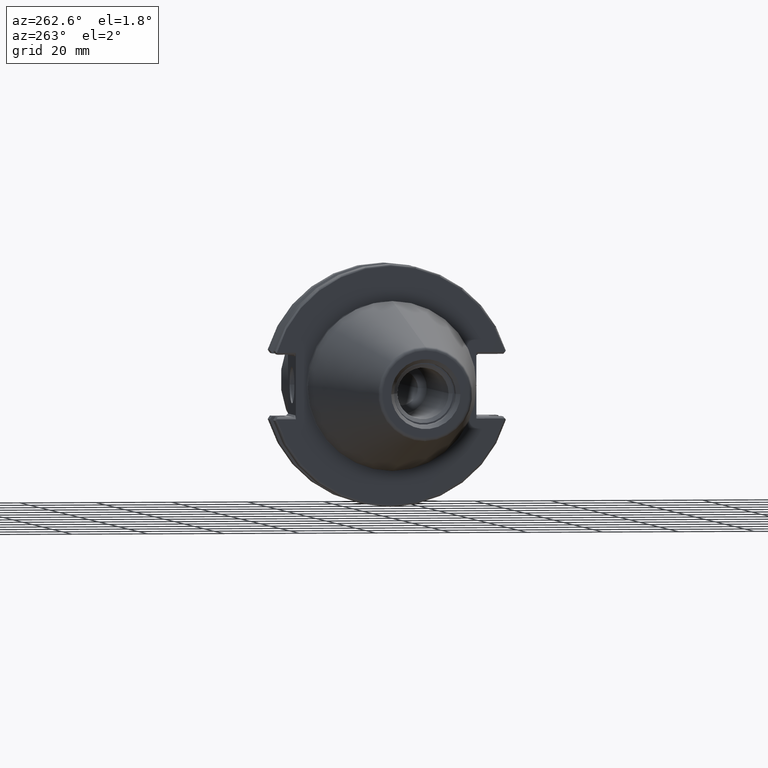
[diagram: clean part render]
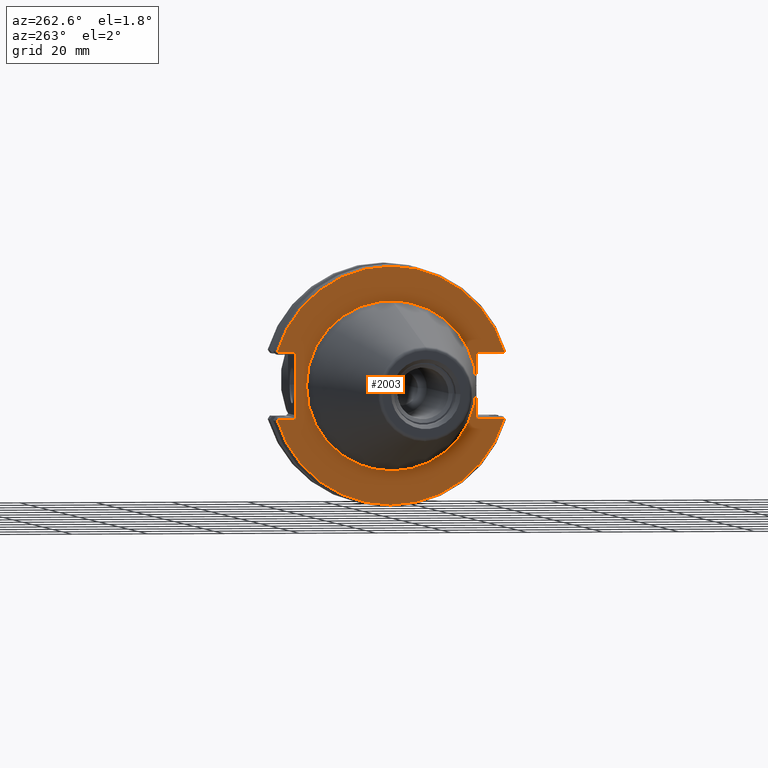
[diagram: same view with one face highlighted and labeled with its STEP entity id]
A machine part, auxiliary view. The second image highlights one B-rep face of the part: STEP entity #2003.
In plain terms, the highlighted planar face has unit normal (1, 0, 0).
Its self-contained STEP definition (entity closure, byte-faithful):
#116=CARTESIAN_POINT('',(3.175E0,0.E0,0.E0));
#117=DIRECTION('',(1.E0,0.E0,0.E0));
#118=DIRECTION('',(0.E0,1.E0,0.E0));
#119=AXIS2_PLACEMENT_3D('',#116,#117,#118);
#121=CARTESIAN_POINT('',(3.175E0,0.E0,0.E0));
#122=DIRECTION('',(1.E0,0.E0,0.E0));
#123=DIRECTION('',(0.E0,-1.E0,0.E0));
#124=AXIS2_PLACEMENT_3D('',#121,#122,#123);
#126=DIRECTION('',(-4.416490716681E-7,-9.999999999998E-1,-4.416327437506E-7));
#127=VECTOR('',#126,5.017433816154E0);
#128=CARTESIAN_POINT('',(3.175002215945E0,3.001743381615E1,8.690002215863E0));
#129=LINE('',#128,#127);
#130=DIRECTION('',(2.987481982108E-7,-9.999999999999E-1,2.987371537468E-7));
#131=VECTOR('',#130,7.417433816239E0);
#132=CARTESIAN_POINT('',(3.175E0,-2.26E1,8.69E0));
#133=LINE('',#132,#131);
#134=DIRECTION('',(-2.987481980911E-7,9.999999999999E-1,2.987371530284E-7));
#135=VECTOR('',#134,7.417433816238E0);
#136=CARTESIAN_POINT('',(3.175002215945E0,-3.001743381624E1,-8.690002215863E0));
#137=LINE('',#136,#135);
#138=DIRECTION('',(4.416490717585E-7,9.999999999998E-1,-4.416327437526E-7));
#139=VECTOR('',#138,5.017433816133E0);
#140=CARTESIAN_POINT('',(3.175E0,2.5E1,-8.69E0));
#141=LINE('',#140,#139);
#168=DIRECTION('',(0.E0,0.E0,-1.E0));
#169=VECTOR('',#168,1.738E1);
#170=CARTESIAN_POINT('',(3.175E0,2.5E1,8.69E0));
#171=LINE('',#170,#169);
#864=DIRECTION('',(0.E0,0.E0,1.E0));
#865=VECTOR('',#864,1.738E1);
#866=CARTESIAN_POINT('',(3.175E0,-2.26E1,-8.69E0));
#867=LINE('',#866,#865);
#990=CARTESIAN_POINT('',(3.175E0,0.E0,0.E0));
#991=DIRECTION('',(-1.E0,0.E0,0.E0));
#992=DIRECTION('',(0.E0,9.605579196518E-1,-2.780799938762E-1));
#993=AXIS2_PLACEMENT_3D('',#990,#991,#992);
#1062=CARTESIAN_POINT('',(3.175E0,0.E0,0.E0));
#1063=DIRECTION('',(-1.E0,0.E0,0.E0));
#1064=DIRECTION('',(0.E0,-9.605579196529E-1,2.780799938725E-1));
#1065=AXIS2_PLACEMENT_3D('',#1062,#1063,#1064);
#1544=CARTESIAN_POINT('',(3.175E0,2.22E1,0.E0));
#1545=CARTESIAN_POINT('',(3.175E0,-2.22E1,0.E0));
#1546=VERTEX_POINT('',#1544);
#1547=VERTEX_POINT('',#1545);
#1600=CARTESIAN_POINT('',(3.175002215945E0,3.001743381615E1,8.690002215863E0));
#1601=CARTESIAN_POINT('',(3.175E0,2.5E1,8.69E0));
#1602=VERTEX_POINT('',#1600);
#1603=VERTEX_POINT('',#1601);
#1608=CARTESIAN_POINT('',(3.175E0,2.5E1,-8.69E0));
#1609=CARTESIAN_POINT('',(3.175002215945E0,3.001743381613E1,-8.690002215863E0));
#1610=VERTEX_POINT('',#1608);
#1611=VERTEX_POINT('',#1609);
#1616=CARTESIAN_POINT('',(3.175E0,-2.26E1,8.69E0));
#1617=CARTESIAN_POINT('',(3.175002215945E0,-3.001743381624E1,8.690002215863E0));
#1618=VERTEX_POINT('',#1616);
#1619=VERTEX_POINT('',#1617);
#1624=CARTESIAN_POINT('',(3.175002215945E0,-3.001743381624E1,
-8.690002215863E0));
#1625=CARTESIAN_POINT('',(3.175E0,-2.26E1,-8.69E0));
#1626=VERTEX_POINT('',#1624);
#1627=VERTEX_POINT('',#1625);
#1976=CARTESIAN_POINT('',(3.175E0,0.E0,0.E0));
#1977=DIRECTION('',(1.E0,0.E0,0.E0));
#1978=DIRECTION('',(0.E0,0.E0,1.E0));
#1979=AXIS2_PLACEMENT_3D('',#1976,#1977,#1978);
#1980=PLANE('',#1979);
#1982=ORIENTED_EDGE('',*,*,#1981,.F.);
#1984=ORIENTED_EDGE('',*,*,#1983,.F.);
#1986=ORIENTED_EDGE('',*,*,#1985,.F.);
#1988=ORIENTED_EDGE('',*,*,#1987,.F.);
#1990=ORIENTED_EDGE('',*,*,#1989,.F.);
#1992=ORIENTED_EDGE('',*,*,#1991,.F.);
#1994=ORIENTED_EDGE('',*,*,#1993,.F.);
#1996=ORIENTED_EDGE('',*,*,#1995,.F.);
#1997=EDGE_LOOP('',(#1982,#1984,#1986,#1988,#1990,#1992,#1994,#1996));
#1998=FACE_OUTER_BOUND('',#1997,.F.);
#1999=ORIENTED_EDGE('',*,*,#1929,.F.);
#2000=ORIENTED_EDGE('',*,*,#1944,.F.);
#2001=EDGE_LOOP('',(#1999,#2000));
#2002=FACE_BOUND('',#2001,.F.);
#2003=ADVANCED_FACE('',(#1998,#2002),#1980,.F.);
#120=CIRCLE('',#119,2.22E1);
#125=CIRCLE('',#124,2.22E1);
#994=CIRCLE('',#993,3.125E1);
#1066=CIRCLE('',#1065,3.125E1);
#1929=EDGE_CURVE('',#1546,#1547,#120,.T.);
#1944=EDGE_CURVE('',#1547,#1546,#125,.T.);
#1981=EDGE_CURVE('',#1602,#1603,#129,.T.);
#1983=EDGE_CURVE('',#1619,#1602,#1066,.T.);
#1985=EDGE_CURVE('',#1618,#1619,#133,.T.);
#1987=EDGE_CURVE('',#1627,#1618,#867,.T.);
#1989=EDGE_CURVE('',#1626,#1627,#137,.T.);
#1991=EDGE_CURVE('',#1611,#1626,#994,.T.);
#1993=EDGE_CURVE('',#1610,#1611,#141,.T.);
#1995=EDGE_CURVE('',#1603,#1610,#171,.T.);